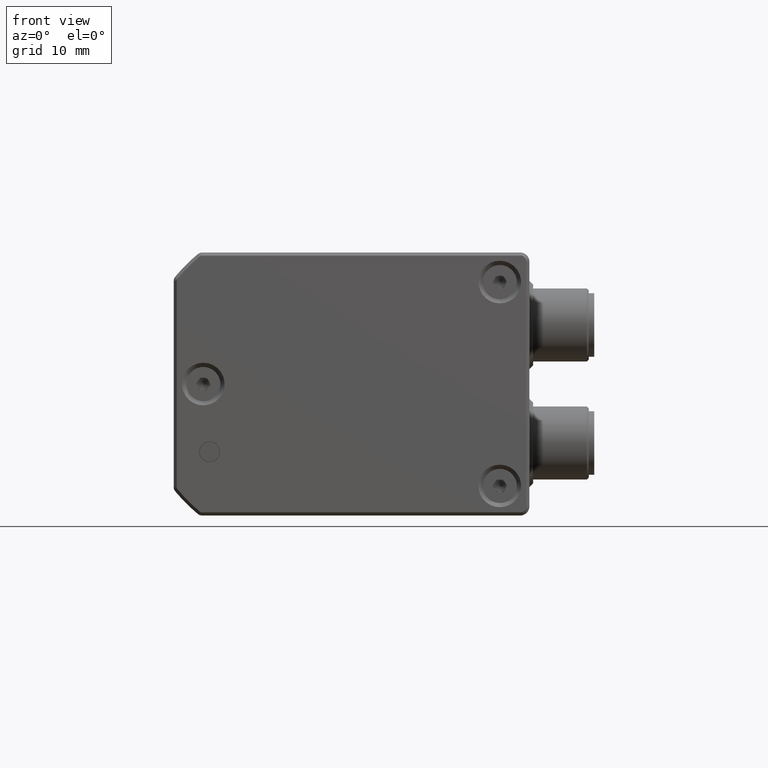
[diagram: clean part render]
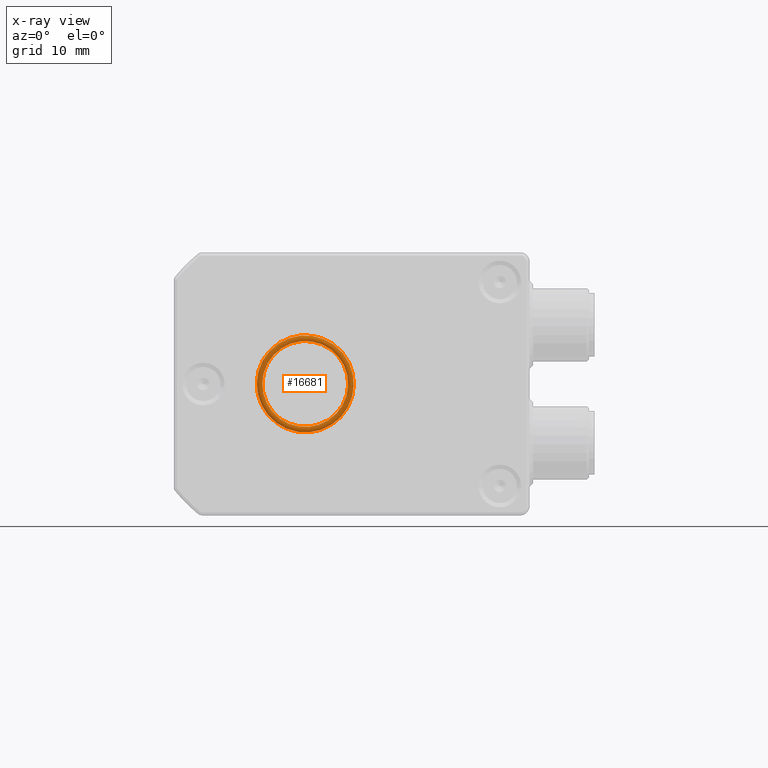
[diagram: x-ray — body ghosted, one internal face saturated and labeled with its STEP entity id]
A machine part, front view, then the same camera in x-ray: the body is ghosted and one INTERNAL B-rep face — a face not visible from any outside direction — is saturated and labeled: STEP entity #16681.
In plain terms, the highlighted toroidal blend (fillet) surface has major radius 7.35 mm and minor (blend) radius 0.5 mm.
Its self-contained STEP definition (entity closure, byte-faithful):
#310 = DIRECTION ( 'NONE',  ( -0.5469441386039886055, 0.000000000000000000, 0.8371691043312221581 ) ) ;
#1122 = CIRCLE ( 'NONE', #10008, 6.950000000000019718 ) ;
#2471 = ORIENTED_EDGE ( 'NONE', *, *, #9634, .T. ) ;
#2747 = FACE_OUTER_BOUND ( 'NONE', #15130, .T. ) ;
#4727 = TOROIDAL_SURFACE ( 'NONE', #11701, 7.349999999999997868, 0.5000000000000000000 ) ;
#6468 = EDGE_LOOP ( 'NONE', ( #2471 ) ) ;
#6953 = DIRECTION ( 'NONE',  ( 0.000000000000000000, -1.000000000000000000, 0.000000000000000000 ) ) ;
#7046 = CARTESIAN_POINT ( 'NONE',  ( 0.000000000000000000, 30.70000000000001350, 0.000000000000000000 ) ) ;
#7728 = CIRCLE ( 'NONE', #9398, 6.950000000000019718 ) ;
#8348 = DIRECTION ( 'NONE',  ( 0.000000000000000000, -1.000000000000000000, 0.000000000000000000 ) ) ;
#8981 = CARTESIAN_POINT ( 'NONE',  ( 0.000000000000000000, 31.30000000000000782, 0.000000000000000000 ) ) ;
#9398 = AXIS2_PLACEMENT_3D ( 'NONE', #8981, #11769, #17103 ) ;
#9634 = EDGE_CURVE ( 'NONE', #13862, #13862, #7728, .T. ) ;
#10008 = AXIS2_PLACEMENT_3D ( 'NONE', #7046, #6953, #13305 ) ;
#10584 = ORIENTED_EDGE ( 'NONE', *, *, #16682, .F. ) ;
#10880 = FACE_OUTER_BOUND ( 'NONE', #6468, .T. ) ;
#11628 = CARTESIAN_POINT ( 'NONE',  ( -3.801261763297731910, 30.70000000000001350, 5.818325275102011140 ) ) ;
#11701 = AXIS2_PLACEMENT_3D ( 'NONE', #12265, #8348, #310 ) ;
#11769 = DIRECTION ( 'NONE',  ( 0.000000000000000000, -1.000000000000000000, 0.000000000000000000 ) ) ;
#12265 = CARTESIAN_POINT ( 'NONE',  ( 0.000000000000000000, 31.00000000000000711, 0.000000000000000000 ) ) ;
#13305 = DIRECTION ( 'NONE',  ( -0.5469441386039886055, 0.000000000000000000, 0.8371691043312222691 ) ) ;
#13862 = VERTEX_POINT ( 'NONE', #14190 ) ;
#14190 = CARTESIAN_POINT ( 'NONE',  ( -3.801261763297731910, 31.30000000000000782, 5.818325275102011140 ) ) ;
#15130 = EDGE_LOOP ( 'NONE', ( #10584 ) ) ;
#16681 = ADVANCED_FACE ( 'NONE', ( #2747, #10880 ), #4727, .T. ) ;
#16682 = EDGE_CURVE ( 'NONE', #17240, #17240, #1122, .T. ) ;
#17103 = DIRECTION ( 'NONE',  ( -0.5469441386039886055, 0.000000000000000000, 0.8371691043312222691 ) ) ;
#17240 = VERTEX_POINT ( 'NONE', #11628 ) ;